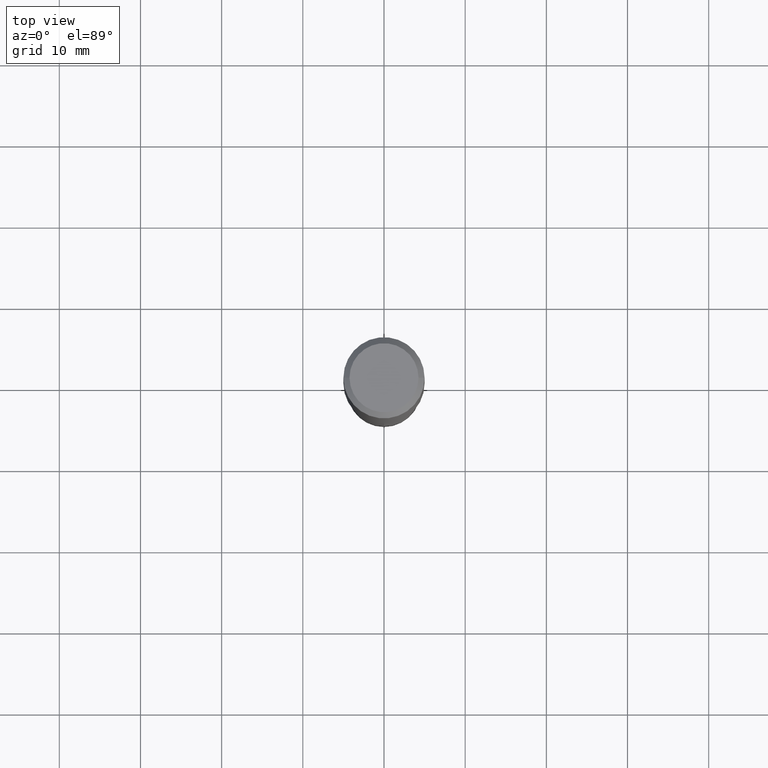
[diagram: clean part render]
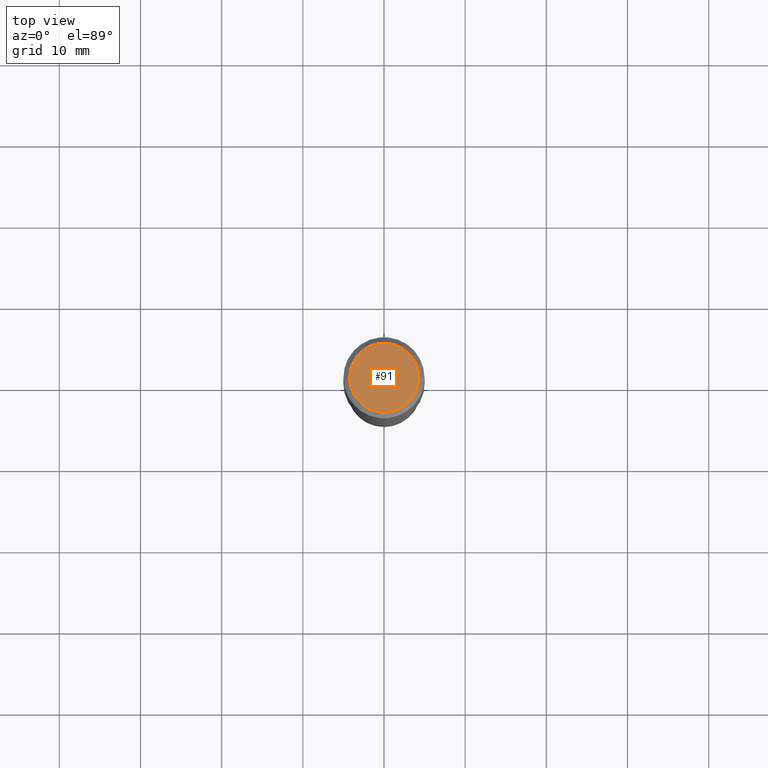
[diagram: same view with one face highlighted and labeled with its STEP entity id]
A machine part, top view. The second image highlights one B-rep face of the part: STEP entity #91.
In plain terms, the highlighted planar face has unit normal (0, -0, -1).
Its self-contained STEP definition (entity closure, byte-faithful):
#40 = DIRECTION ( 'NONE',  ( 1.000000000000000000, -6.982962677686267499E-15, 4.876294436782262290E-29 ) ) ;
#83 = DIRECTION ( 'NONE',  ( 1.000000000000000000, -6.982962677686267499E-15, 4.876294436782262290E-29 ) ) ;
#91 = ADVANCED_FACE ( 'NONE', ( #290 ), #92, .F. ) ;
#92 = PLANE ( 'NONE',  #176 ) ;
#98 = AXIS2_PLACEMENT_3D ( 'NONE', #314, #198, #40 ) ;
#120 = DIRECTION ( 'NONE',  ( -2.445468806185136597E-29, 3.491481338843145583E-15, 1.000000000000000000 ) ) ;
#163 = CIRCLE ( 'NONE', #98, 0.1673224999999999851 ) ;
#170 = EDGE_CURVE ( 'NONE', #280, #361, #313, .T. ) ;
#172 = CARTESIAN_POINT ( 'NONE',  ( 0.1673224999999999851, -1.300749711163072594E-15, 4.096137381456741925E-18 ) ) ;
#176 = AXIS2_PLACEMENT_3D ( 'NONE', #376, #443, #328 ) ;
#198 = DIRECTION ( 'NONE',  ( -2.445468806185136597E-29, 3.491481338843145583E-15, 1.000000000000000000 ) ) ;
#234 = EDGE_CURVE ( 'NONE', #361, #280, #163, .T. ) ;
#235 = CARTESIAN_POINT ( 'NONE',  ( -0.1673224999999999851, 1.219954130253505460E-15, 4.096137381439757534E-18 ) ) ;
#252 = AXIS2_PLACEMENT_3D ( 'NONE', #399, #120, #83 ) ;
#280 = VERTEX_POINT ( 'NONE', #172 ) ;
#290 = FACE_OUTER_BOUND ( 'NONE', #322, .T. ) ;
#313 = CIRCLE ( 'NONE', #252, 0.1673224999999999851 ) ;
#314 = CARTESIAN_POINT ( 'NONE',  ( -1.001697619218021790E-46, 1.430158722866389718E-32, 4.096137381448108366E-18 ) ) ;
#322 = EDGE_LOOP ( 'NONE', ( #447, #416 ) ) ;
#328 = DIRECTION ( 'NONE',  ( -1.000000000000000000, 6.982962677686265922E-15, -4.876176775795935793E-29 ) ) ;
#361 = VERTEX_POINT ( 'NONE', #235 ) ;
#376 = CARTESIAN_POINT ( 'NONE',  ( -5.008488096090108951E-47, 7.150793614331948590E-33, 2.048068690724054183E-18 ) ) ;
#399 = CARTESIAN_POINT ( 'NONE',  ( -1.001697619218021790E-46, 1.430158722866389718E-32, 4.096137381448108366E-18 ) ) ;
#416 = ORIENTED_EDGE ( 'NONE', *, *, #170, .T. ) ;
#443 = DIRECTION ( 'NONE',  ( 2.438088387897960049E-29, -3.491481338843145188E-15, -1.000000000000000000 ) ) ;
#447 = ORIENTED_EDGE ( 'NONE', *, *, #234, .T. ) ;